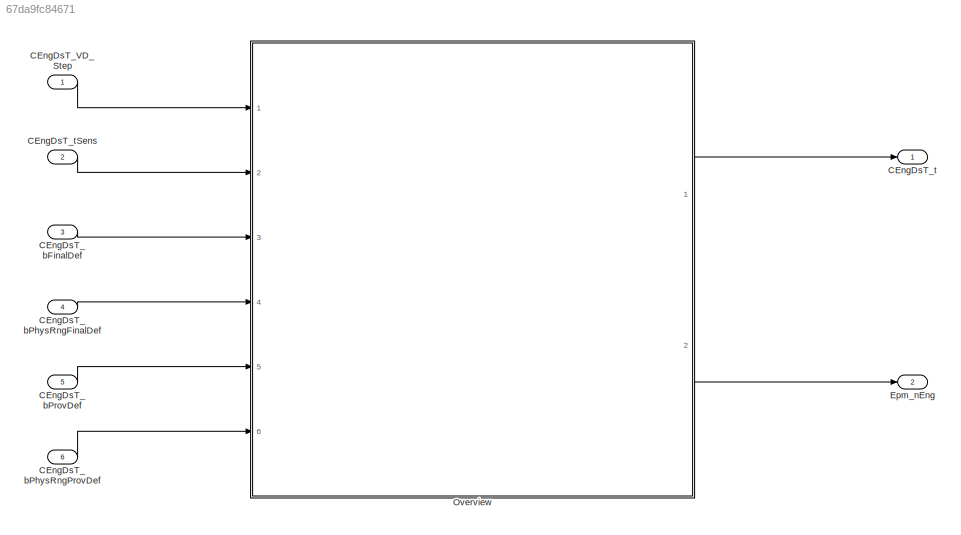
MODEL slx_67da9fc84671
KIND model
CONFIG AbsTol = auto
CONFIG EnableMultiTasking = off
CONFIG FixedStep = 0.001
CONFIG MaxStep = auto
CONFIG MinStep = auto
CONFIG RelTol = 1e-3
CONFIG SampleTimeConstraint = Unconstrained
CONFIG SolverName = FixedStepDiscrete
CONFIG StartTime = 0.0
CONFIG StopTime = Inf
WORKSPACE source: mxarray member
WORKSPACE CEngDsT_VD_DT = 10
BLOCK [Inport] CEngDsT_VD_Step
  OutputFunctionCall = on
BLOCK [Inport] CEngDsT_bFinalDef
  Description = Status Sensor of the coolant temperature finally defect
  OutDataTypeStr = boolean
  OutMax = 1
  OutMin = 0
  Port = 3
  PortDimensions = [1 1]
BLOCK [Inport] CEngDsT_bPhysRngFinalDef
  Description = Status Sensor of the CEngDsT physical Signal range check finally defect
  OutDataTypeStr = boolean
  OutMax = 1
  OutMin = 0
  Port = 4
  PortDimensions = [1 1]
BLOCK [Inport] CEngDsT_bPhysRngProvDef
  Description = Status Sensor of the CEngDsT physical Signal range check temporary defect
  OutDataTypeStr = boolean
  OutMax = 1
  OutMin = 0
  Port = 6
  PortDimensions = [1 1]
BLOCK [Inport] CEngDsT_bProvDef
  Description = Status Sensor of the coolant temperature temporary defect
  OutDataTypeStr = boolean
  OutMax = 1
  OutMin = 0
  Port = 5
  PortDimensions = [1 1]
BLOCK [Outport] CEngDsT_t
  Description = engine coolant temperature after filter
  OutDataTypeStr = Temp_C
  OutMax = 200
  OutMin = -200
  PortDimensions = [1 1]
  Unit = deg
BLOCK [Inport] CEngDsT_tSens
  Description = Sensed engine coolant temperature
  OutDataTypeStr = Temp_C
  OutMax = 200
  OutMin = -200
  Port = 2
  PortDimensions = [1 1]
  Unit = deg
BLOCK [Outport] Epm_nEng
  Description = Engine speed
  OutDataTypeStr = ERPM
  OutMax = 6000
  OutMin = 0
  Port = 2
  PortDimensions = [1 1]
  Unit = rpm
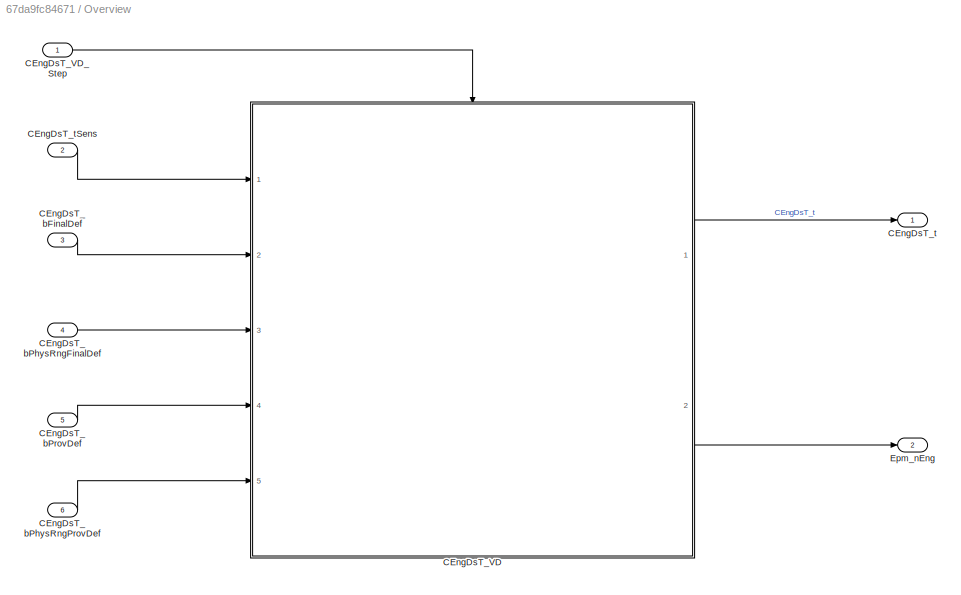
BLOCK [SubSystem] Overview
  Ports = [6, 2]
  RequestExecContextInheritance = off
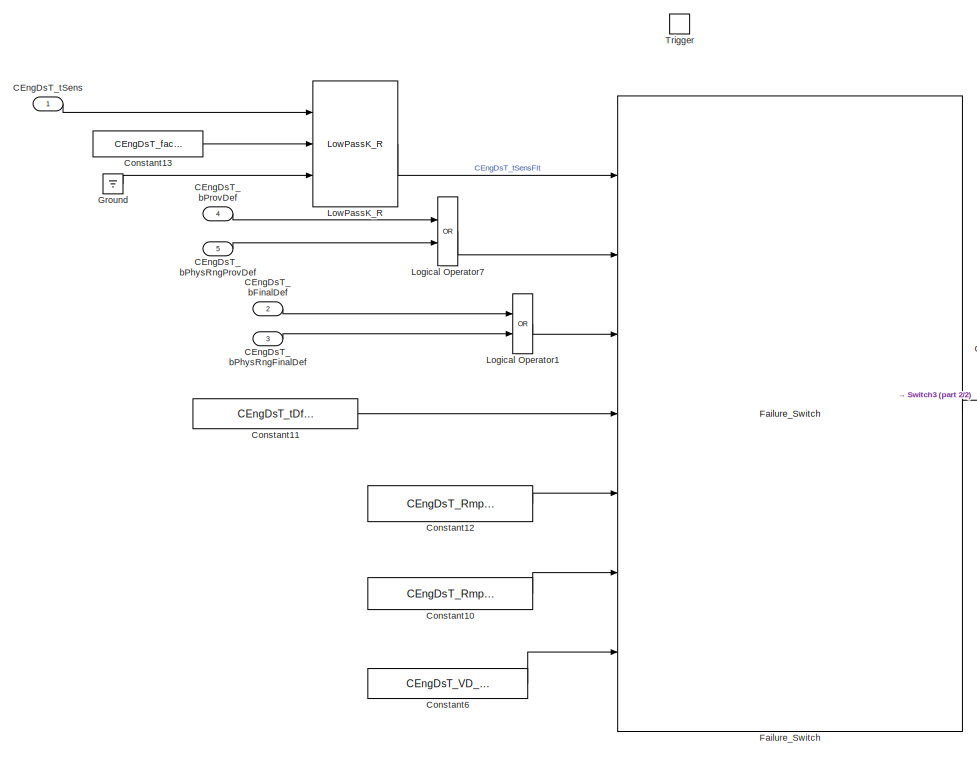
[diagram: Overview/CEngDsT_VD - part 1/2, left side, full height]
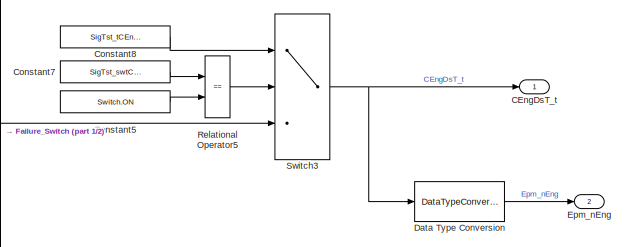
[diagram: Overview/CEngDsT_VD - part 2/2, middle right region]
BLOCK [SubSystem] Overview/CEngDsT_VD
  Ports = [5, 2, 0, 1]
  RequestExecContextInheritance = off
BLOCK [Inport] Overview/CEngDsT_VD/CEngDsT_bFinalDef
  Description = Status Sensor of the coolant temperature finally defect
  OutDataTypeStr = boolean
  OutMax = 1
  OutMin = 0
  Port = 2
BLOCK [Inport] Overview/CEngDsT_VD/CEngDsT_bPhysRngFinalDef
  Description = Status Sensor of the CEngDsT physical Signal range check finally defect
  Port = 3
BLOCK [Inport] Overview/CEngDsT_VD/CEngDsT_bPhysRngProvDef
  Description = Status Sensor of the CEngDsT physical Signal range check temporary defect
  OutDataTypeStr = boolean
  OutMax = 1
  OutMin = 0
  Port = 5
BLOCK [Inport] Overview/CEngDsT_VD/CEngDsT_bProvDef
  Description = Status Sensor of the coolant temperature temporary defect
  OutDataTypeStr = boolean
  OutMax = 1
  OutMin = 0
  Port = 4
BLOCK [Outport] Overview/CEngDsT_VD/CEngDsT_t
  Description = engine coolant temperature after filter
  OutMax = 200
  OutMin = -200
  Tag = deg
  VectorParamsAs1DForOutWhenUnconnected = off
BLOCK [Inport] Overview/CEngDsT_VD/CEngDsT_tSens
  Description = Sensed engine coolant temperature
  OutMax = 200
  OutMin = -200
  Tag = deg
BLOCK [Constant] Overview/CEngDsT_VD/Constant10
  SampleTime = -1
  Value = CEngDsT_RmpSlpNeg_C
BLOCK [Constant] Overview/CEngDsT_VD/Constant11
  SampleTime = -1
  Value = CEngDsT_tDflWarm_C
BLOCK [Constant] Overview/CEngDsT_VD/Constant12
  SampleTime = -1
  Value = CEngDsT_RmpSlpPos_C
BLOCK [Constant] Overview/CEngDsT_VD/Constant13
  SampleTime = -1
  Value = CEngDsT_facSerPT1_C
BLOCK [Constant] Overview/CEngDsT_VD/Constant5
  OutDataTypeStr = Enum: Switch
  Value = Switch.ON
BLOCK [Constant] Overview/CEngDsT_VD/Constant6
  SampleTime = -1
  Value = CEngDsT_VD_DT
BLOCK [Constant] Overview/CEngDsT_VD/Constant7
  SampleTime = -1
  Value = SigTst_swtCEngDsT_C
BLOCK [Constant] Overview/CEngDsT_VD/Constant8
  SampleTime = -1
  Value = SigTst_tCEngDsT_C
BLOCK [DataTypeConversion] Overview/CEngDsT_VD/Data Type Conversion
  RndMeth = Floor
BLOCK [Outport] Overview/CEngDsT_VD/Epm_nEng
  Description = engine coolant temperature after filter
  OutMax = 200
  OutMin = -200
  Port = 2
  Tag = deg
  VectorParamsAs1DForOutWhenUnconnected = off
BLOCK [Reference] Overview/CEngDsT_VD/Failure_Switch  REF=sllib/Fault Manager/Failure_Switch  (lib defined in slx_2b0aa6d284ff)
  Ports = [7, 1]
  SourceBlock = sllib/Fault Manager/Failure_Switch
  SourceProductName = sllib
  SourceType = Failure_Switch
BLOCK [Ground] Overview/CEngDsT_VD/Ground
BLOCK [Logic] Overview/CEngDsT_VD/Logical Operator1
  Operator = OR
  OutDataTypeStr = boolean
  Ports = [2, 1]
BLOCK [Logic] Overview/CEngDsT_VD/Logical Operator7
  Operator = OR
  OutDataTypeStr = boolean
  Ports = [2, 1]
BLOCK [Reference] Overview/CEngDsT_VD/LowPassK_R  REF=sllib/Transfer Functions/LowPassK_R  (lib defined in slx_2b0aa6d284ff)
  Ports = [3, 1]
  SourceBlock = sllib/Transfer Functions/LowPassK_R
  SourceProductName = sllib
  SourceType = LowPassK
BLOCK [RelationalOperator] Overview/CEngDsT_VD/Relational Operator5
  Operator = ==
  OutDataTypeStr = boolean
  Ports = [2, 1]
  RndMeth = Simplest
BLOCK [Switch] Overview/CEngDsT_VD/Switch3
  Criteria = u2 ~= 0
  SaturateOnIntegerOverflow = off
BLOCK [TriggerPort] Overview/CEngDsT_VD/Trigger
  PortDimensions = 1
  Ports = []
  StatesWhenEnabling = held
  TriggerType = function-call
  VariantControl = Variant
BLOCK [Inport] Overview/CEngDsT_VD_Step
BLOCK [Inport] Overview/CEngDsT_bFinalDef
  Description = Status Sensor of the coolant temperature finally defect
  OutDataTypeStr = boolean
  OutMax = 1
  OutMin = 0
  Port = 3
  PortDimensions = [1 1]
  Tag = []
BLOCK [Inport] Overview/CEngDsT_bPhysRngFinalDef
  Description = Status Sensor of the CEngDsT physical Signal range check finally defect
  OutDataTypeStr = boolean
  OutMax = 1
  OutMin = 0
  Port = 4
  PortDimensions = [1 1]
  Tag = []
BLOCK [Inport] Overview/CEngDsT_bPhysRngProvDef
  Description = Status Sensor of the CEngDsT physical Signal range check temporary defect
  OutDataTypeStr = boolean
  OutMax = 1
  OutMin = 0
  Port = 6
  PortDimensions = [1 1]
  Tag = []
BLOCK [Inport] Overview/CEngDsT_bProvDef
  Description = Status Sensor of the coolant temperature temporary defect
  OutDataTypeStr = boolean
  OutMax = 1
  OutMin = 0
  Port = 5
  PortDimensions = [1 1]
  Tag = []
BLOCK [Outport] Overview/CEngDsT_t
  VectorParamsAs1DForOutWhenUnconnected = off
BLOCK [Inport] Overview/CEngDsT_tSens
  Description = Sensed engine coolant temperature
  OutDataTypeStr = Temp_C
  OutMax = 200
  OutMin = -200
  Port = 2
  PortDimensions = [1 1]
  Tag = []
  Unit = deg
BLOCK [Outport] Overview/Epm_nEng
  Port = 2
LINE CEngDsT_VD_Step:1 -> Overview:1
LINE CEngDsT_bFinalDef:1 -> Overview:3
LINE CEngDsT_bPhysRngFinalDef:1 -> Overview:4
LINE CEngDsT_bPhysRngProvDef:1 -> Overview:6
LINE CEngDsT_bProvDef:1 -> Overview:5
LINE CEngDsT_tSens:1 -> Overview:2
LINE Overview/CEngDsT_VD/CEngDsT_bFinalDef:1 -> Overview/CEngDsT_VD/Logical Operator1:1
LINE Overview/CEngDsT_VD/CEngDsT_bPhysRngFinalDef:1 -> Overview/CEngDsT_VD/Logical Operator1:2
LINE Overview/CEngDsT_VD/CEngDsT_bPhysRngProvDef:1 -> Overview/CEngDsT_VD/Logical Operator7:2
LINE Overview/CEngDsT_VD/CEngDsT_bProvDef:1 -> Overview/CEngDsT_VD/Logical Operator7:1
LINE Overview/CEngDsT_VD/CEngDsT_tSens:1 -> Overview/CEngDsT_VD/LowPassK_R:1
LINE Overview/CEngDsT_VD/Constant10:1 -> Overview/CEngDsT_VD/Failure_Switch:6
LINE Overview/CEngDsT_VD/Constant11:1 -> Overview/CEngDsT_VD/Failure_Switch:4
LINE Overview/CEngDsT_VD/Constant12:1 -> Overview/CEngDsT_VD/Failure_Switch:5
LINE Overview/CEngDsT_VD/Constant13:1 -> Overview/CEngDsT_VD/LowPassK_R:2
LINE Overview/CEngDsT_VD/Constant5:1 -> Overview/CEngDsT_VD/Relational Operator5:2
LINE Overview/CEngDsT_VD/Constant6:1 -> Overview/CEngDsT_VD/Failure_Switch:7
LINE Overview/CEngDsT_VD/Constant7:1 -> Overview/CEngDsT_VD/Relational Operator5:1
LINE Overview/CEngDsT_VD/Constant8:1 -> Overview/CEngDsT_VD/Switch3:1
LINE Overview/CEngDsT_VD/Data Type Conversion:1 -> Overview/CEngDsT_VD/Epm_nEng:1
LINE Overview/CEngDsT_VD/Failure_Switch:1 -> Overview/CEngDsT_VD/Switch3:3
LINE Overview/CEngDsT_VD/Ground:1 -> Overview/CEngDsT_VD/LowPassK_R:3
LINE Overview/CEngDsT_VD/Logical Operator1:1 -> Overview/CEngDsT_VD/Failure_Switch:3
LINE Overview/CEngDsT_VD/Logical Operator7:1 -> Overview/CEngDsT_VD/Failure_Switch:2
LINE Overview/CEngDsT_VD/LowPassK_R:1 -> Overview/CEngDsT_VD/Failure_Switch:1
LINE Overview/CEngDsT_VD/Relational Operator5:1 -> Overview/CEngDsT_VD/Switch3:2
NET Overview/CEngDsT_VD/Switch3:1 -> Overview/CEngDsT_VD/CEngDsT_t:1, Overview/CEngDsT_VD/Data Type Conversion:1
LINE Overview/CEngDsT_VD:1 -> Overview/CEngDsT_t:1
LINE Overview/CEngDsT_VD:2 -> Overview/Epm_nEng:1
LINE Overview/CEngDsT_VD_Step:1 -> Overview/CEngDsT_VD:trigger
LINE Overview/CEngDsT_bFinalDef:1 -> Overview/CEngDsT_VD:2
LINE Overview/CEngDsT_bPhysRngFinalDef:1 -> Overview/CEngDsT_VD:3
LINE Overview/CEngDsT_bPhysRngProvDef:1 -> Overview/CEngDsT_VD:5
LINE Overview/CEngDsT_bProvDef:1 -> Overview/CEngDsT_VD:4
LINE Overview/CEngDsT_tSens:1 -> Overview/CEngDsT_VD:1
LINE Overview:1 -> CEngDsT_t:1
LINE Overview:2 -> Epm_nEng:1
note: NET lines group one-source signal fan-out (src -> all destinations, sorted); 1:1 wires keep LINE
